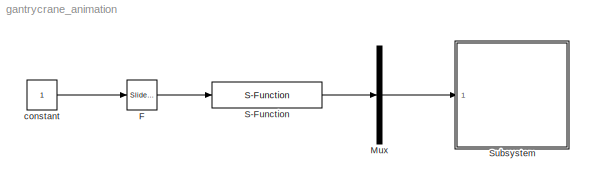
MODEL gantrycrane_animation
KIND model
BLOCK [Reference] F  REF=simulink/Math\nOperations/Slider\nGain
  Ports = [1, 1]
  SID = 5
  SourceBlock = simulink/Math\nOperations/Slider\nGain
  SourceType = Slider Gain
  gain = 20
  high = 100
  low = -100
BLOCK [Mux] Mux
  DisplayOption = bar
  Inputs = 1
  Ports = [1, 1]
  SID = 4
BLOCK [S-Function] S-Function
  EnableBusSupport = off
  FunctionName = crane_dynamics
  Parameters = AP
  Ports = [1, 1]
  SID = 14
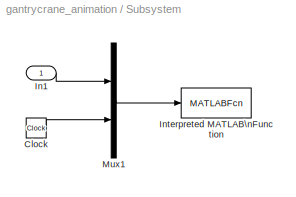
BLOCK [SubSystem] Subsystem
  Ports = [1]
  RequestExecContextInheritance = off
  SID = 11
BLOCK [Clock] Subsystem/Clock
  SID = 8
BLOCK [Inport] Subsystem/In1
  IconDisplay = Port number
  SID = 12
BLOCK [MATLABFcn] Subsystem/Interpreted MATLAB\nFunction
  MATLABFcn = drawGantryCrane(u,bar,crane,L1,R1,L2,R2)
  OutputDimensions = 0
  Ports = [1]
  SID = 10
  SampleTime = 0.1
BLOCK [Mux] Subsystem/Mux1
  DisplayOption = bar
  Inputs = 2
  Ports = [2, 1]
  SID = 9
BLOCK [Constant] constant
  SID = 1
LINE F:1 -> S-Function:1
LINE Mux:1 -> Subsystem:1
LINE S-Function:1 -> Mux:1
LINE Subsystem/Clock:1 -> Subsystem/Mux1:2
LINE Subsystem/In1:1 -> Subsystem/Mux1:1
LINE Subsystem/Mux1:1 -> Subsystem/Interpreted MATLAB\nFunction:1
LINE constant:1 -> F:1
